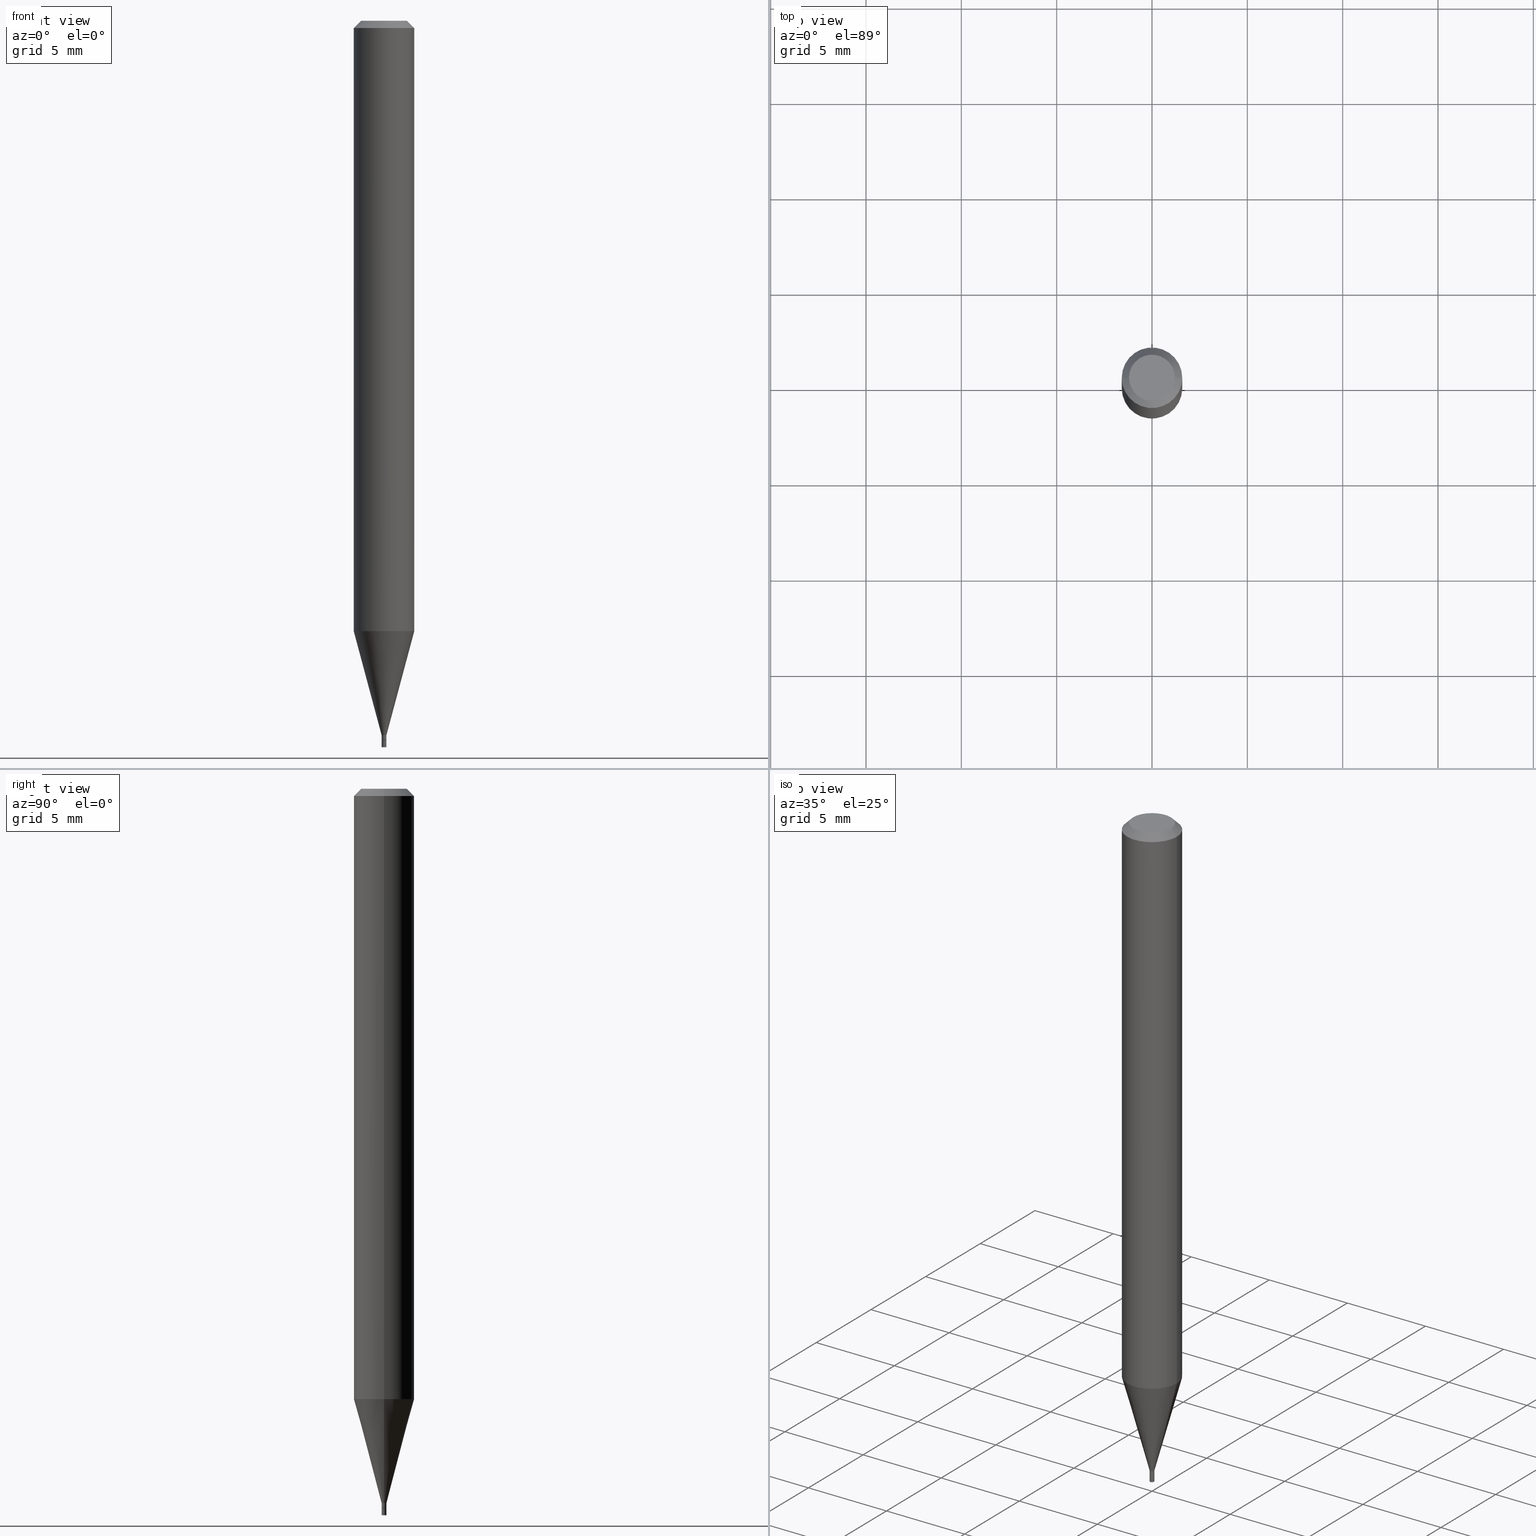
[diagram: canonical four-view strip — front | top / right | iso, engineering-drawing reading convention]
A machine part, canonical four-view strip (front | top / right | iso — engineering-drawing reading convention). The complete STEP part file that produces these views, byte-faithful:
ISO-10303-21;
HEADER;
FILE_DESCRIPTION (( 'STEP AP203' ),
    '1' );
FILE_NAME ('01090.STEP',
    '2024-03-19T22:48:56',
    ( '' ),
    ( '' ),
    'SwSTEP 2.0',
    'SolidWorks 2023',
    '' );
FILE_SCHEMA (( 'CONFIG_CONTROL_DESIGN' ));
ENDSEC;

DATA;
#1 = CIRCLE ( 'NONE', #76, 0.005000000000000000104 ) ;
#2 = AXIS2_PLACEMENT_3D ( 'NONE', #400, #393, #391 ) ;
#3 = ORIENTED_EDGE ( 'NONE', *, *, #59, .F. ) ;
#4 = ADVANCED_FACE ( 'NONE', ( #344 ), #79, .T. ) ;
#5 = DIRECTION ( 'NONE',  ( -2.445468806185136877E-29, 3.491481338843145188E-15, 1.000000000000000000 ) ) ;
#6 = PERSON_AND_ORGANIZATION_ROLE ( 'design_supplier' ) ;
#7 = CARTESIAN_POINT ( 'NONE',  ( 3.668203209277705088E-31, -5.237222008264718399E-17, -0.01499999999999999944 ) ) ;
#8 = CC_DESIGN_PERSON_AND_ORGANIZATION_ASSIGNMENT ( #105, #155, ( #71 ) ) ;
#9 = CARTESIAN_POINT ( 'NONE',  ( -0.005000000000000000104, -5.175508761435389793E-15, -1.500000000000000222 ) ) ;
#10 = ADVANCED_FACE ( 'NONE', ( #370 ), #89, .F. ) ;
#11 = ORIENTED_EDGE ( 'NONE', *, *, #243, .T. ) ;
#12 = AXIS2_PLACEMENT_3D ( 'NONE', #350, #256, #387 ) ;
#13 = FACE_OUTER_BOUND ( 'NONE', #101, .T. ) ;
#14 = AXIS2_PLACEMENT_3D ( 'NONE', #371, #39, #343 ) ;
#15 = CARTESIAN_POINT ( 'NONE',  ( 3.082286193725132894E-29, -4.400687794154770769E-15, -1.260407078564790062 ) ) ;
#16 = CARTESIAN_POINT ( 'NONE',  ( 0.06250000000000000000, -4.888073874380388472E-16, -0.01499999999999999944 ) ) ;
#17 = VERTEX_POINT ( 'NONE', #193 ) ;
#18 = DIRECTION ( 'NONE',  ( 0.000000000000000000, 0.000000000000000000, 1.000000000000000000 ) ) ;
#19 = VERTEX_POINT ( 'NONE', #9 ) ;
#20 = CARTESIAN_POINT ( 'NONE',  ( 0.005000000000000000104, -3.491481338843132862E-17, 2.438088387897967984E-31 ) ) ;
#21 = VERTEX_POINT ( 'NONE', #191 ) ;
#22 = DIRECTION ( 'NONE',  ( -2.445468806185136597E-29, 3.491481338843145583E-15, 1.000000000000000000 ) ) ;
#23 = APPROVAL_STATUS ( 'not_yet_approved' ) ;
#24 = CARTESIAN_POINT ( 'NONE',  ( 3.631521177184928138E-29, -5.184849788182071492E-15, -1.485000000000000098 ) ) ;
#25 = EDGE_LOOP ( 'NONE', ( #406, #287 ) ) ;
#26 = CARTESIAN_POINT ( 'NONE',  ( 3.082286193725132894E-29, -4.400687794154770769E-15, -1.260407078564790062 ) ) ;
#27 = AXIS2_PLACEMENT_3D ( 'NONE', #199, #18, #121 ) ;
#28 = ORIENTED_EDGE ( 'NONE', *, *, #347, .F. ) ;
#29 = EDGE_CURVE ( 'NONE', #293, #283, #48, .T. ) ;
#30 = CARTESIAN_POINT ( 'NONE',  ( -8.051188380117617343E-45, 1.149496322079166104E-30, 3.292288316969884985E-16 ) ) ;
#31 = PERSON_AND_ORGANIZATION ( #181, #291 ) ;
#32 = VERTEX_POINT ( 'NONE', #337 ) ;
#33 = DIRECTION ( 'NONE',  ( 2.445468806185136597E-29, -3.491481338843145583E-15, -1.000000000000000000 ) ) ;
#34 = ORIENTED_EDGE ( 'NONE', *, *, #300, .T. ) ;
#35 = ADVANCED_FACE ( 'NONE', ( #448 ), #122, .T. ) ;
#36 = ADVANCED_FACE ( 'NONE', ( #312 ), #399, .T. ) ;
#37 = AXIS2_PLACEMENT_3D ( 'NONE', #82, #309, #45 ) ;
#38 = APPLICATION_PROTOCOL_DEFINITION ( 'international standard', 'config_control_design', 1994, #432 ) ;
#39 = DIRECTION ( 'NONE',  ( -2.445468806185136597E-29, 3.491481338843145583E-15, 1.000000000000000000 ) ) ;
#40 = DIRECTION ( 'NONE',  ( 1.000000000000000000, -6.982962677686224112E-15, 0.000000000000000000 ) ) ;
#41 = EDGE_LOOP ( 'NONE', ( #235, #460 ) ) ;
#42 = CLOSED_SHELL ( 'NONE', ( #329, #342, #133, #146, #466, #35, #54, #253, #222, #397, #36, #56 ) ) ;
#43 = PLANE ( 'NONE',  #322 ) ;
#44 = VECTOR ( 'NONE', #333, 39.37007874015748143 ) ;
#45 = DIRECTION ( 'NONE',  ( 1.000000000000000000, -6.982962677686265922E-15, 4.876176775795935793E-29 ) ) ;
#46 = ORIENTED_EDGE ( 'NONE', *, *, #144, .T. ) ;
#47 = CARTESIAN_POINT ( 'NONE',  ( 3.631521177184928138E-29, -5.184849788182071492E-15, -1.485000000000000098 ) ) ;
#48 = LINE ( 'NONE', #125, #360 ) ;
#49 = LENGTH_MEASURE_WITH_UNIT ( LENGTH_MEASURE( 0.02539999999999999897 ), #123 );
#50 = LINE ( 'NONE', #441, #410 ) ;
#51 = AXIS2_PLACEMENT_3D ( 'NONE', #250, #141, #292 ) ;
#52 = AXIS2_PLACEMENT_3D ( 'NONE', #107, #396, #188 ) ;
#53 = DATE_TIME_ROLE ( 'creation_date' ) ;
#54 = ADVANCED_FACE ( 'NONE', ( #362 ), #450, .T. ) ;
#55 = DIRECTION ( 'NONE',  ( 1.000000000000000000, -6.982962677686267499E-15, 4.852736867747366768E-29 ) ) ;
#56 = ADVANCED_FACE ( 'NONE', ( #229 ), #414, .T. ) ;
#57 = EDGE_LOOP ( 'NONE', ( #299, #408, #265, #130 ) ) ;
#58 = DIRECTION ( 'NONE',  ( 1.000000000000000000, -6.982962677686266711E-15, 4.876176775795935793E-29 ) ) ;
#59 = EDGE_CURVE ( 'NONE', #19, #17, #50, .T. ) ;
#60 = ORIENTED_EDGE ( 'NONE', *, *, #114, .T. ) ;
#61 = DIMENSIONAL_EXPONENTS ( 1.000000000000000000, 0.000000000000000000, 0.000000000000000000, 0.000000000000000000, 0.000000000000000000, 0.000000000000000000, 0.000000000000000000 ) ;
#62 = DIRECTION ( 'NONE',  ( 1.000000000000000000, -6.982962677686265922E-15, 4.876176775795935793E-29 ) ) ;
#63 = AXIS2_PLACEMENT_3D ( 'NONE', #198, #22, #240 ) ;
#64 = PRODUCT_DEFINITION_FORMATION_WITH_SPECIFIED_SOURCE ( 'ANY', '', #74, .NOT_KNOWN. ) ;
#65 = VERTEX_POINT ( 'NONE', #405 ) ;
#66 = CARTESIAN_POINT ( 'NONE',  ( -0.004999999999999922909, -5.147576910724645736E-15, -1.484500000000000153 ) ) ;
#67 = ORIENTED_EDGE ( 'NONE', *, *, #334, .T. ) ;
#68 = EDGE_CURVE ( 'NONE', #251, #384, #83, .T. ) ;
#69 = CARTESIAN_POINT ( 'NONE',  ( -0.004500000000000000527, -5.150226137898756937E-15, -1.485000000000000098 ) ) ;
#70 = CARTESIAN_POINT ( 'NONE',  ( 0.005000000000000000104, -5.272136821653149826E-15, -1.500000000000000222 ) ) ;
#71 = SECURITY_CLASSIFICATION ( '', '', #434 ) ;
#72 = EDGE_CURVE ( 'NONE', #283, #446, #236, .T. ) ;
#73 = CARTESIAN_POINT ( 'NONE',  ( 0.004500000000000000527, -5.216273120231659345E-15, -1.485000000000000098 ) ) ;
#74 = PRODUCT ( '01090', '01090', '', ( #164 ) ) ;
#75 = PERSON_AND_ORGANIZATION ( #181, #291 ) ;
#76 = AXIS2_PLACEMENT_3D ( 'NONE', #24, #172, #132 ) ;
#77 = COORDINATED_UNIVERSAL_TIME_OFFSET ( 5, 0, .BEHIND. ) ;
#78 = VECTOR ( 'NONE', #5, 39.37007874015748143 ) ;
#79 = CYLINDRICAL_SURFACE ( 'NONE', #63, 0.005000000000000000104 ) ;
#80 = CARTESIAN_POINT ( 'NONE',  ( 3.631521177184928138E-29, -5.184849788182071492E-15, -1.485000000000000098 ) ) ;
#81 = ORIENTED_EDGE ( 'NONE', *, *, #411, .T. ) ;
#82 = CARTESIAN_POINT ( 'NONE',  ( 3.584916967085606921E-29, -5.356492647442320375E-15, -1.500000000000000222 ) ) ;
#83 = CIRCLE ( 'NONE', #180, 0.004500000000000000527 ) ;
#84 = DIRECTION ( 'NONE',  ( -2.438088387897960049E-29, 3.491481338843145188E-15, 1.000000000000000000 ) ) ;
#85 = AXIS2_PLACEMENT_3D ( 'NONE', #47, #151, #197 ) ;
#86 = MANIFOLD_SOLID_BREP ( 'Body-Move/Copy2[1]', #386 ) ;
#87 = CC_DESIGN_PERSON_AND_ORGANIZATION_ASSIGNMENT ( #31, #308, ( #318 ) ) ;
#88 = DIRECTION ( 'NONE',  ( -1.000000000000000000, 6.982962677686265922E-15, -4.876176775795935793E-29 ) ) ;
#89 = PLANE ( 'NONE',  #37 ) ;
#90 = CARTESIAN_POINT ( 'NONE',  ( 0.004500000000000000527, -5.216273120231659345E-15, -1.485000000000000098 ) ) ;
#91 = COORDINATED_UNIVERSAL_TIME_OFFSET ( 5, 0, .BEHIND. ) ;
#92 = DIRECTION ( 'NONE',  ( -2.445468806185136877E-29, 3.491481338843145188E-15, 1.000000000000000000 ) ) ;
#93 = LINE ( 'NONE', #102, #111 ) ;
#94 = VERTEX_POINT ( 'NONE', #127 ) ;
#95 = DIRECTION ( 'NONE',  ( 2.438088387897960049E-29, -3.491481338843145188E-15, -1.000000000000000000 ) ) ;
#96 = ORIENTED_EDGE ( 'NONE', *, *, #358, .F. ) ;
#97 = DIRECTION ( 'NONE',  ( 1.000000000000000000, -6.982962677686332186E-15, 0.000000000000000000 ) ) ;
#98 = EDGE_LOOP ( 'NONE', ( #11, #425, #340, #174 ) ) ;
#99 = CARTESIAN_POINT ( 'NONE',  ( 3.316907271900976096E-16, 0.04749999999999999362, -1.230947746555162994E-18 ) ) ;
#100 = CIRCLE ( 'NONE', #455, 0.004999999999999922909 ) ;
#101 = EDGE_LOOP ( 'NONE', ( #96, #156 ) ) ;
#102 = CARTESIAN_POINT ( 'NONE',  ( -0.06250000000000000000, 3.840629472727444916E-16, -0.01499999999999999944 ) ) ;
#103 = ORIENTED_EDGE ( 'NONE', *, *, #144, .F. ) ;
#104 = CONICAL_SURFACE ( 'NONE', #124, 0.004500000000000000527, 0.7853981633974723708 ) ;
#105 = PERSON_AND_ORGANIZATION ( #181, #291 ) ;
#106 = EDGE_LOOP ( 'NONE', ( #260, #430, #354, #215 ) ) ;
#107 = CARTESIAN_POINT ( 'NONE',  ( 3.607066489123076592E-29, -5.149934974793640632E-15, -1.475000000000000311 ) ) ;
#108 = COORDINATED_UNIVERSAL_TIME_OFFSET ( 5, 0, .BEHIND. ) ;
#109 = FACE_OUTER_BOUND ( 'NONE', #295, .T. ) ;
#110 = CC_DESIGN_PERSON_AND_ORGANIZATION_ASSIGNMENT ( #158, #6, ( #64 ) ) ;
#111 = VECTOR ( 'NONE', #258, 39.37007874015748143 ) ;
#112 = DATE_TIME_ROLE ( 'classification_date' ) ;
#113 = DIRECTION ( 'NONE',  ( 1.000000000000000000, -6.982962677686224112E-15, 0.000000000000000000 ) ) ;
#114 = EDGE_CURVE ( 'NONE', #283, #65, #374, .T. ) ;
#115 = CARTESIAN_POINT ( 'NONE',  ( 3.668203209277705088E-31, -5.237222008264718399E-17, -0.01499999999999999944 ) ) ;
#116 = DIRECTION ( 'NONE',  ( -2.445468806185136877E-29, 3.491481338843145188E-15, 1.000000000000000000 ) ) ;
#117 = CALENDAR_DATE ( 2024, 19, 3 ) ;
#118 = DIRECTION ( 'NONE',  ( -2.445468806185136597E-29, 3.491481338843145583E-15, 1.000000000000000000 ) ) ;
#119 = CARTESIAN_POINT ( 'NONE',  ( 3.631521177184928138E-29, -5.184849788182071492E-15, -1.485000000000000098 ) ) ;
#120 = DIRECTION ( 'NONE',  ( -2.445468806185136597E-29, 3.491481338843145583E-15, 1.000000000000000000 ) ) ;
#121 = DIRECTION ( 'NONE',  ( 1.000000000000000000, 0.000000000000000000, 0.000000000000000000 ) ) ;
#122 = CONICAL_SURFACE ( 'NONE', #185, 0.004999999999999921174, 0.2617993877991500740 ) ;
#123 =( LENGTH_UNIT ( ) NAMED_UNIT ( * ) SI_UNIT ( $, .METRE. ) );
#124 = AXIS2_PLACEMENT_3D ( 'NONE', #119, #163, #113 ) ;
#125 = CARTESIAN_POINT ( 'NONE',  ( -0.004999999999999921174, -5.114407838005636380E-15, -1.475000000000000311 ) ) ;
#126 =( NAMED_UNIT ( * ) SI_UNIT ( $, .STERADIAN. ) SOLID_ANGLE_UNIT ( ) );
#127 = CARTESIAN_POINT ( 'NONE',  ( -0.04749999999999999362, 3.578768372314216422E-16, 3.292288316969860333E-16 ) ) ;
#128 = CARTESIAN_POINT ( 'NONE',  ( 3.607066489123076592E-29, -5.149934974793640632E-15, -1.475000000000000311 ) ) ;
#129 = CALENDAR_DATE ( 2024, 19, 3 ) ;
#130 = ORIENTED_EDGE ( 'NONE', *, *, #331, .F. ) ;
#131 = CIRCLE ( 'NONE', #212, 0.04749999999999999362 ) ;
#132 = DIRECTION ( 'NONE',  ( 1.000000000000000000, -6.982962677686332186E-15, 0.000000000000000000 ) ) ;
#133 = ADVANCED_FACE ( 'NONE', ( #245 ), #392, .T. ) ;
#134 = EDGE_LOOP ( 'NONE', ( #388, #60, #28, #382 ) ) ;
#135 = DIRECTION ( 'NONE',  ( -2.445468806185136597E-29, 3.491481338843145583E-15, 1.000000000000000000 ) ) ;
#136 = ADVANCED_BREP_SHAPE_REPRESENTATION ( '01090', ( #86, #230, #27 ), #213 ) ;
#137 = EDGE_LOOP ( 'NONE', ( #3, #209, #217, #211 ) ) ;
#138 = DIRECTION ( 'NONE',  ( -0.7071067811865645591, 7.493145998870415691E-15, 0.7071067811865304753 ) ) ;
#139 = ORIENTED_EDGE ( 'NONE', *, *, #304, .F. ) ;
#140 = ADVANCED_FACE ( 'NONE', ( #214 ), #383, .T. ) ;
#141 = DIRECTION ( 'NONE',  ( -2.445468806185136597E-29, 3.491481338843145583E-15, 1.000000000000000000 ) ) ;
#142 = ORIENTED_EDGE ( 'NONE', *, *, #313, .T. ) ;
#143 = PRODUCT_DEFINITION_SHAPE ( 'NONE', 'NONE',  #318 ) ;
#144 = EDGE_CURVE ( 'NONE', #257, #293, #175, .T. ) ;
#145 = APPROVAL ( #413, 'UNSPECIFIED' ) ;
#146 = ADVANCED_FACE ( 'NONE', ( #286 ), #353, .T. ) ;
#147 = VECTOR ( 'NONE', #454, 39.37007874015748143 ) ;
#148 = CIRCLE ( 'NONE', #332, 0.06250000000000000000 ) ;
#149 = CALENDAR_DATE ( 2024, 19, 3 ) ;
#150 = ORIENTED_EDGE ( 'NONE', *, *, #182, .T. ) ;
#151 = DIRECTION ( 'NONE',  ( -2.445468806185136597E-29, 3.491481338843145583E-15, 1.000000000000000000 ) ) ;
#152 = DIRECTION ( 'NONE',  ( -2.445468806185136597E-29, 3.491481338843145583E-15, 1.000000000000000000 ) ) ;
#153 = AXIS2_PLACEMENT_3D ( 'NONE', #328, #284, #58 ) ;
#154 = LOCAL_TIME ( 18, 48, 56.00000000000000000, #315 ) ;
#155 = PERSON_AND_ORGANIZATION_ROLE ( 'classification_officer' ) ;
#156 = ORIENTED_EDGE ( 'NONE', *, *, #68, .F. ) ;
#157 = DIRECTION ( 'NONE',  ( -2.445468806185136597E-29, 3.491481338843145583E-15, 1.000000000000000000 ) ) ;
#158 = PERSON_AND_ORGANIZATION ( #181, #291 ) ;
#159 = CARTESIAN_POINT ( 'NONE',  ( 0.06249999999999999306, -4.837122961510163228E-15, -1.260407078564790062 ) ) ;
#160 = DIRECTION ( 'NONE',  ( 1.000000000000000000, -6.982962677686248567E-15, 0.000000000000000000 ) ) ;
#161 = EDGE_LOOP ( 'NONE', ( #81, #150 ) ) ;
#162 = EDGE_CURVE ( 'NONE', #21, #94, #131, .T. ) ;
#163 = DIRECTION ( 'NONE',  ( -2.445468806185136597E-29, 3.491481338843145583E-15, 1.000000000000000000 ) ) ;
#164 = MECHANICAL_CONTEXT ( 'NONE', #432, 'mechanical' ) ;
#165 = DIRECTION ( 'NONE',  ( -2.445468806185136597E-29, 3.491481338843145583E-15, 1.000000000000000000 ) ) ;
#166 = CIRCLE ( 'NONE', #412, 0.005000000000000000104 ) ;
#167 = DIRECTION ( 'NONE',  ( -2.445468806185136597E-29, 3.491481338843145583E-15, 1.000000000000000000 ) ) ;
#168 = CARTESIAN_POINT ( 'NONE',  ( 0.000000000000000000, 0.000000000000000000, 0.000000000000000000 ) ) ;
#169 = ORIENTED_EDGE ( 'NONE', *, *, #114, .F. ) ;
#170 = EDGE_CURVE ( 'NONE', #251, #257, #326, .T. ) ;
#171 = AXIS2_PLACEMENT_3D ( 'NONE', #128, #282, #417 ) ;
#172 = DIRECTION ( 'NONE',  ( -2.445468806185136597E-29, 3.491481338843145583E-15, 1.000000000000000000 ) ) ;
#173 = DESIGN_CONTEXT ( 'detailed design', #465, 'design' ) ;
#174 = ORIENTED_EDGE ( 'NONE', *, *, #378, .F. ) ;
#175 = LINE ( 'NONE', #319, #310 ) ;
#176 = ORIENTED_EDGE ( 'NONE', *, *, #29, .F. ) ;
#177 = PLANE ( 'NONE',  #267 ) ;
#178 = ORIENTED_EDGE ( 'NONE', *, *, #72, .T. ) ;
#179 = EDGE_CURVE ( 'NONE', #21, #421, #252, .T. ) ;
#180 = AXIS2_PLACEMENT_3D ( 'NONE', #80, #365, #40 ) ;
#181 = PERSON ( 'UNSPECIFIED', 'UNSPECIFIED', 'UNSPECIFIED', ('UNSPECIFIED'), ('UNSPECIFIED'), ('UNSPECIFIED') ) ;
#182 = EDGE_CURVE ( 'NONE', #17, #254, #1, .T. ) ;
#183 = LINE ( 'NONE', #73, #44 ) ;
#184 = APPROVAL ( #269, 'UNSPECIFIED' ) ;
#185 = AXIS2_PLACEMENT_3D ( 'NONE', #403, #118, #160 ) ;
#186 = CC_DESIGN_APPROVAL ( #184, ( #71 ) ) ;
#187 = APPROVAL_ROLE ( '' ) ;
#188 = DIRECTION ( 'NONE',  ( 1.000000000000000000, -6.982962677686248567E-15, 0.000000000000000000 ) ) ;
#189 = APPROVAL_DATE_TIME ( #394, #325 ) ;
#190 = DIRECTION ( 'NONE',  ( 1.000000000000000000, -6.982962677686246200E-15, 0.000000000000000000 ) ) ;
#191 = CARTESIAN_POINT ( 'NONE',  ( 0.04749999999999999362, -4.035134999187572707E-16, 3.292288316969910130E-16 ) ) ;
#192 = DIRECTION ( 'NONE',  ( 1.000000000000000000, -6.982962677686265922E-15, 4.876176775795935793E-29 ) ) ;
#193 = CARTESIAN_POINT ( 'NONE',  ( -0.005000000000000000104, -5.175508761435389793E-15, -1.485000000000000098 ) ) ;
#194 = EDGE_CURVE ( 'NONE', #94, #21, #204, .T. ) ;
#195 = AXIS2_PLACEMENT_3D ( 'NONE', #302, #280, #226 ) ;
#196 = ORIENTED_EDGE ( 'NONE', *, *, #72, .F. ) ;
#197 = DIRECTION ( 'NONE',  ( 1.000000000000000000, -6.982962677686332186E-15, 0.000000000000000000 ) ) ;
#198 = CARTESIAN_POINT ( 'NONE',  ( 0.000000000000000000, 0.000000000000000000, 0.000000000000000000 ) ) ;
#199 = CARTESIAN_POINT ( 'NONE',  ( 0.000000000000000000, 0.000000000000000000, 0.000000000000000000 ) ) ;
#200 = ORIENTED_EDGE ( 'NONE', *, *, #228, .F. ) ;
#201 = CARTESIAN_POINT ( 'NONE',  ( 3.668203209277704895E-29, -5.237222008264718177E-15, -1.500000000000000222 ) ) ;
#202 = CARTESIAN_POINT ( 'NONE',  ( 0.000000000000000000, 0.000000000000000000, 0.000000000000000000 ) ) ;
#203 = CARTESIAN_POINT ( 'NONE',  ( 3.630298442781835897E-29, -5.183104047512649988E-15, -1.484500000000000153 ) ) ;
#204 = CIRCLE ( 'NONE', #462, 0.04749999999999999362 ) ;
#205 = CIRCLE ( 'NONE', #255, 0.004500000000000000527 ) ;
#206 = CIRCLE ( 'NONE', #52, 0.004999999999999921174 ) ;
#207 = PERSON_AND_ORGANIZATION ( #181, #291 ) ;
#208 = CARTESIAN_POINT ( 'NONE',  ( -0.004500000000000000527, -5.152875365072866561E-15, -1.485000000000000098 ) ) ;
#209 = ORIENTED_EDGE ( 'NONE', *, *, #431, .T. ) ;
#210 = DIRECTION ( 'NONE',  ( -1.000000000000000000, 6.982962677686265922E-15, -4.876176775795935793E-29 ) ) ;
#211 = ORIENTED_EDGE ( 'NONE', *, *, #182, .F. ) ;
#212 = AXIS2_PLACEMENT_3D ( 'NONE', #348, #167, #55 ) ;
#213 =( GEOMETRIC_REPRESENTATION_CONTEXT ( 3 ) GLOBAL_UNCERTAINTY_ASSIGNED_CONTEXT ( ( #305 ) ) GLOBAL_UNIT_ASSIGNED_CONTEXT ( ( #404, #301, #126 ) ) REPRESENTATION_CONTEXT ( 'NONE', 'WORKASPACE' ) );
#214 = FACE_OUTER_BOUND ( 'NONE', #98, .T. ) ;
#215 = ORIENTED_EDGE ( 'NONE', *, *, #317, .T. ) ;
#216 = DIRECTION ( 'NONE',  ( -1.000000000000000000, 6.982962677686266711E-15, 0.000000000000000000 ) ) ;
#217 = ORIENTED_EDGE ( 'NONE', *, *, #378, .T. ) ;
#218 = CARTESIAN_POINT ( 'NONE',  ( -0.06249999999999999306, -3.956598584304708153E-15, -1.260407078564790062 ) ) ;
#219 = EDGE_CURVE ( 'NONE', #32, #446, #355, .T. ) ;
#220 = CONICAL_SURFACE ( 'NONE', #12, 0.06250000000000000000, 0.7853981633974373988 ) ;
#221 = CONICAL_SURFACE ( 'NONE', #14, 0.004999999999999921174, 0.2617993877991500740 ) ;
#222 = ADVANCED_FACE ( 'NONE', ( #429 ), #177, .F. ) ;
#223 = AXIS2_PLACEMENT_3D ( 'NONE', #115, #33, #216 ) ;
#224 = AXIS2_PLACEMENT_3D ( 'NONE', #26, #135, #424 ) ;
#225 = APPROVAL_DATE_TIME ( #395, #184 ) ;
#226 = DIRECTION ( 'NONE',  ( 1.000000000000000000, -6.982962677686224112E-15, 0.000000000000000000 ) ) ;
#227 = PLANE ( 'NONE',  #464 ) ;
#228 = EDGE_CURVE ( 'NONE', #257, #356, #345, .T. ) ;
#229 = FACE_OUTER_BOUND ( 'NONE', #427, .T. ) ;
#230 = MANIFOLD_SOLID_BREP ( 'Body-Move/Copy2[2]', #42 ) ;
#231 = DATE_AND_TIME ( #398, #428 ) ;
#232 = ORIENTED_EDGE ( 'NONE', *, *, #390, .T. ) ;
#233 = LINE ( 'NONE', #274, #420 ) ;
#234 = EDGE_CURVE ( 'NONE', #94, #65, #93, .T. ) ;
#235 = ORIENTED_EDGE ( 'NONE', *, *, #194, .T. ) ;
#236 = CIRCLE ( 'NONE', #438, 0.06250000000000000000 ) ;
#237 = LOCAL_TIME ( 18, 48, 56.00000000000000000, #108 ) ;
#238 = DIRECTION ( 'NONE',  ( -2.445468806185136597E-29, 3.491481338843145583E-15, 1.000000000000000000 ) ) ;
#239 = CC_DESIGN_PERSON_AND_ORGANIZATION_ASSIGNMENT ( #75, #338, ( #64 ) ) ;
#240 = DIRECTION ( 'NONE',  ( 1.000000000000000000, -6.982962677686265922E-15, 4.876176775795935793E-29 ) ) ;
#241 = CARTESIAN_POINT ( 'NONE',  ( 0.004999999999999922909, -5.218018860901080849E-15, -1.484500000000000153 ) ) ;
#242 = CARTESIAN_POINT ( 'NONE',  ( 0.000000000000000000, 0.000000000000000000, 0.000000000000000000 ) ) ;
#243 = EDGE_CURVE ( 'NONE', #330, #19, #297, .T. ) ;
#244 = CALENDAR_DATE ( 2024, 19, 3 ) ;
#245 = FACE_OUTER_BOUND ( 'NONE', #289, .T. ) ;
#246 = PERSON_AND_ORGANIZATION ( #181, #291 ) ;
#247 = CC_DESIGN_APPROVAL ( #325, ( #64 ) ) ;
#248 = LINE ( 'NONE', #379, #78 ) ;
#249 = ORIENTED_EDGE ( 'NONE', *, *, #304, .T. ) ;
#250 = CARTESIAN_POINT ( 'NONE',  ( 3.630298442781835897E-29, -5.183104047512649988E-15, -1.484500000000000153 ) ) ;
#251 = VERTEX_POINT ( 'NONE', #69 ) ;
#252 = LINE ( 'NONE', #357, #147 ) ;
#253 = ADVANCED_FACE ( 'NONE', ( #288 ), #220, .T. ) ;
#254 = VERTEX_POINT ( 'NONE', #381 ) ;
#255 = AXIS2_PLACEMENT_3D ( 'NONE', #439, #238, #369 ) ;
#256 = DIRECTION ( 'NONE',  ( 2.445468806185136597E-29, -3.491481338843145583E-15, -1.000000000000000000 ) ) ;
#257 = VERTEX_POINT ( 'NONE', #66 ) ;
#258 = DIRECTION ( 'NONE',  ( -0.7071067811865398012, 2.468850131082175808E-15, -0.7071067811865552333 ) ) ;
#259 = CC_DESIGN_PERSON_AND_ORGANIZATION_ASSIGNMENT ( #277, #416, ( #74 ) ) ;
#260 = ORIENTED_EDGE ( 'NONE', *, *, #179, .F. ) ;
#261 = DIRECTION ( 'NONE',  ( 1.000000000000000000, -6.982962677686266711E-15, 0.000000000000000000 ) ) ;
#262 = AXIS2_PLACEMENT_3D ( 'NONE', #168, #426, #62 ) ;
#263 = VECTOR ( 'NONE', #407, 39.37007874015748143 ) ;
#264 = PERSON_AND_ORGANIZATION ( #181, #291 ) ;
#265 = ORIENTED_EDGE ( 'NONE', *, *, #334, .F. ) ;
#266 = CYLINDRICAL_SURFACE ( 'NONE', #2, 0.004999999999999922042 ) ;
#267 = AXIS2_PLACEMENT_3D ( 'NONE', #99, #95, #210 ) ;
#268 = CC_DESIGN_APPROVAL ( #145, ( #318 ) ) ;
#269 = APPROVAL_STATUS ( 'not_yet_approved' ) ;
#270 = DIRECTION ( 'NONE',  ( 1.000000000000000000, -6.982962677686266711E-15, 0.000000000000000000 ) ) ;
#271 = DIRECTION ( 'NONE',  ( 1.000000000000000000, -6.982962677686266711E-15, 4.876176775795935793E-29 ) ) ;
#272 = EDGE_CURVE ( 'NONE', #446, #283, #418, .T. ) ;
#273 = EDGE_LOOP ( 'NONE', ( #453, #327, #463, #200 ) ) ;
#274 = CARTESIAN_POINT ( 'NONE',  ( 0.06250000000000000000, -4.364351673553916694E-16, 3.047610484872459871E-30 ) ) ;
#275 = PRODUCT_RELATED_PRODUCT_CATEGORY ( 'detail', '', ( #74 ) ) ;
#276 = DIRECTION ( 'NONE',  ( -0.2588190451025213501, 5.211531920934551042E-15, 0.9659258262890682012 ) ) ;
#277 = PERSON_AND_ORGANIZATION ( #181, #291 ) ;
#278 = VECTOR ( 'NONE', #422, 39.37007874015747433 ) ;
#279 = CIRCLE ( 'NONE', #85, 0.005000000000000000104 ) ;
#280 = DIRECTION ( 'NONE',  ( -2.445468806185136597E-29, 3.491481338843145583E-15, 1.000000000000000000 ) ) ;
#281 = DIRECTION ( 'NONE',  ( 1.000000000000000000, -6.982962677686262766E-15, 0.000000000000000000 ) ) ;
#282 = DIRECTION ( 'NONE',  ( -2.445468806185136597E-29, 3.491481338843145583E-15, 1.000000000000000000 ) ) ;
#283 = VERTEX_POINT ( 'NONE', #218 ) ;
#284 = DIRECTION ( 'NONE',  ( -2.445468806185136597E-29, 3.491481338843145583E-15, 1.000000000000000000 ) ) ;
#285 = EDGE_LOOP ( 'NONE', ( #176, #34, #436, #196 ) ) ;
#286 = FACE_OUTER_BOUND ( 'NONE', #134, .T. ) ;
#287 = ORIENTED_EDGE ( 'NONE', *, *, #431, .F. ) ;
#288 = FACE_OUTER_BOUND ( 'NONE', #106, .T. ) ;
#289 = EDGE_LOOP ( 'NONE', ( #456, #380, #423, #351 ) ) ;
#290 = VECTOR ( 'NONE', #92, 39.37007874015748143 ) ;
#291 = ORGANIZATION ( 'UNSPECIFIED', 'UNSPECIFIED', '' ) ;
#292 = DIRECTION ( 'NONE',  ( 1.000000000000000000, -6.982962677686246200E-15, 0.000000000000000000 ) ) ;
#293 = VERTEX_POINT ( 'NONE', #314 ) ;
#294 = CARTESIAN_POINT ( 'NONE',  ( 3.668203209277705088E-31, -5.237222008264718399E-17, -0.01499999999999999944 ) ) ;
#295 = EDGE_LOOP ( 'NONE', ( #67, #46, #324, #139 ) ) ;
#296 = FACE_OUTER_BOUND ( 'NONE', #368, .T. ) ;
#297 = CIRCLE ( 'NONE', #375, 0.005000000000000000104 ) ;
#298 = APPROVAL_PERSON_ORGANIZATION ( #207, #325, #187 ) ;
#299 = ORIENTED_EDGE ( 'NONE', *, *, #358, .T. ) ;
#300 = EDGE_CURVE ( 'NONE', #293, #32, #401, .T. ) ;
#301 =( NAMED_UNIT ( * ) PLANE_ANGLE_UNIT ( ) SI_UNIT ( $, .RADIAN. ) );
#302 = CARTESIAN_POINT ( 'NONE',  ( 3.631521177184928138E-29, -5.184849788182071492E-15, -1.485000000000000098 ) ) ;
#303 = FACE_OUTER_BOUND ( 'NONE', #57, .T. ) ;
#304 = EDGE_CURVE ( 'NONE', #356, #32, #248, .T. ) ;
#305 = UNCERTAINTY_MEASURE_WITH_UNIT (LENGTH_MEASURE( 1.000000000000000082E-05 ), #404, 'distance_accuracy_value', 'NONE');
#306 = ORIENTED_EDGE ( 'NONE', *, *, #29, .T. ) ;
#307 = DIRECTION ( 'NONE',  ( 1.000000000000000000, -6.982962677686332186E-15, 0.000000000000000000 ) ) ;
#308 = PERSON_AND_ORGANIZATION_ROLE ( 'creator' ) ;
#309 = DIRECTION ( 'NONE',  ( -2.438088387897960049E-29, 3.491481338843145188E-15, 1.000000000000000000 ) ) ;
#310 = VECTOR ( 'NONE', #323, 39.37007874015748143 ) ;
#311 = CC_DESIGN_DATE_AND_TIME_ASSIGNMENT ( #373, #53, ( #318 ) ) ;
#312 = FACE_OUTER_BOUND ( 'NONE', #273, .T. ) ;
#313 = EDGE_CURVE ( 'NONE', #32, #293, #206, .T. ) ;
#314 = CARTESIAN_POINT ( 'NONE',  ( -0.004999999999999921174, -4.535503211155172266E-15, -1.475000000000000311 ) ) ;
#315 = COORDINATED_UNIVERSAL_TIME_OFFSET ( 5, 0, .BEHIND. ) ;
#316 = CC_DESIGN_DATE_AND_TIME_ASSIGNMENT ( #231, #112, ( #71 ) ) ;
#317 = EDGE_CURVE ( 'NONE', #65, #421, #148, .T. ) ;
#318 = PRODUCT_DEFINITION ( 'UNKNOWN', '', #64, #173 ) ;
#319 = CARTESIAN_POINT ( 'NONE',  ( -0.004999999999999922042, 3.552713678800445537E-17, -2.459467545127414163E-31 ) ) ;
#320 = EDGE_LOOP ( 'NONE', ( #169, #178, #232, #349 ) ) ;
#321 = AXIS2_PLACEMENT_3D ( 'NONE', #242, #152, #372 ) ;
#322 = AXIS2_PLACEMENT_3D ( 'NONE', #409, #84, #192 ) ;
#323 = DIRECTION ( 'NONE',  ( -2.445468806185136877E-29, 3.491481338843145188E-15, 1.000000000000000000 ) ) ;
#324 = ORIENTED_EDGE ( 'NONE', *, *, #313, .F. ) ;
#325 = APPROVAL ( #23, 'UNSPECIFIED' ) ;
#326 = LINE ( 'NONE', #208, #352 ) ;
#327 = ORIENTED_EDGE ( 'NONE', *, *, #68, .T. ) ;
#328 = CARTESIAN_POINT ( 'NONE',  ( 0.000000000000000000, 0.000000000000000000, 0.000000000000000000 ) ) ;
#329 = ADVANCED_FACE ( 'NONE', ( #109 ), #266, .T. ) ;
#330 = VERTEX_POINT ( 'NONE', #70 ) ;
#331 = EDGE_CURVE ( 'NONE', #384, #356, #183, .T. ) ;
#332 = AXIS2_PLACEMENT_3D ( 'NONE', #294, #437, #261 ) ;
#333 = DIRECTION ( 'NONE',  ( 0.7071067811865645591, -2.468850131082435343E-15, 0.7071067811865304753 ) ) ;
#334 = EDGE_CURVE ( 'NONE', #356, #257, #100, .T. ) ;
#335 = DIRECTION ( 'NONE',  ( -2.445468806185136877E-29, 3.491481338843145188E-15, 1.000000000000000000 ) ) ;
#336 = AXIS2_PLACEMENT_3D ( 'NONE', #202, #120, #271 ) ;
#337 = CARTESIAN_POINT ( 'NONE',  ( 0.004999999999999921174, -5.184849788182071492E-15, -1.475000000000000311 ) ) ;
#338 = PERSON_AND_ORGANIZATION_ROLE ( 'creator' ) ;
#339 = DIRECTION ( 'NONE',  ( -2.445468806185136597E-29, 3.491481338843145583E-15, 1.000000000000000000 ) ) ;
#340 = ORIENTED_EDGE ( 'NONE', *, *, #411, .F. ) ;
#341 = DIRECTION ( 'NONE',  ( -2.445468806185136597E-29, 3.491481338843145583E-15, 1.000000000000000000 ) ) ;
#342 = ADVANCED_FACE ( 'NONE', ( #303 ), #104, .T. ) ;
#343 = DIRECTION ( 'NONE',  ( 1.000000000000000000, -6.982962677686248567E-15, 0.000000000000000000 ) ) ;
#344 = FACE_OUTER_BOUND ( 'NONE', #137, .T. ) ;
#345 = CIRCLE ( 'NONE', #51, 0.004999999999999922909 ) ;
#346 = APPROVAL_PERSON_ORGANIZATION ( #264, #184, #366 ) ;
#347 = EDGE_CURVE ( 'NONE', #421, #65, #447, .T. ) ;
#348 = CARTESIAN_POINT ( 'NONE',  ( -8.051188380117617343E-45, 1.149496322079166104E-30, 3.292288316969884985E-16 ) ) ;
#349 = ORIENTED_EDGE ( 'NONE', *, *, #317, .F. ) ;
#350 = CARTESIAN_POINT ( 'NONE',  ( 3.668203209277705088E-31, -5.237222008264718399E-17, -0.01499999999999999944 ) ) ;
#351 = ORIENTED_EDGE ( 'NONE', *, *, #234, .F. ) ;
#352 = VECTOR ( 'NONE', #138, 39.37007874015748143 ) ;
#353 = CYLINDRICAL_SURFACE ( 'NONE', #153, 0.06250000000000000000 ) ;
#354 = ORIENTED_EDGE ( 'NONE', *, *, #234, .T. ) ;
#355 = LINE ( 'NONE', #452, #278 ) ;
#356 = VERTEX_POINT ( 'NONE', #241 ) ;
#357 = CARTESIAN_POINT ( 'NONE',  ( 0.06250000000000000000, -4.811533449433679005E-16, -0.01499999999999999944 ) ) ;
#358 = EDGE_CURVE ( 'NONE', #384, #251, #205, .T. ) ;
#359 = COORDINATED_UNIVERSAL_TIME_OFFSET ( 5, 0, .BEHIND. ) ;
#360 = VECTOR ( 'NONE', #276, 39.37007874015747433 ) ;
#361 = AXIS2_PLACEMENT_3D ( 'NONE', #7, #339, #270 ) ;
#362 = FACE_OUTER_BOUND ( 'NONE', #320, .T. ) ;
#363 = SHAPE_DEFINITION_REPRESENTATION ( #143, #136 ) ;
#364 = DIRECTION ( 'NONE',  ( 2.438088387897960049E-29, -3.491481338843145188E-15, -1.000000000000000000 ) ) ;
#365 = DIRECTION ( 'NONE',  ( -2.445468806185136597E-29, 3.491481338843145583E-15, 1.000000000000000000 ) ) ;
#366 = APPROVAL_ROLE ( '' ) ;
#367 = CARTESIAN_POINT ( 'NONE',  ( 3.491481338846764088E-17, 0.004999999999994815016, -1.485000000000000098 ) ) ;
#368 = EDGE_LOOP ( 'NONE', ( #142, #306, #435, #458 ) ) ;
#369 = DIRECTION ( 'NONE',  ( 1.000000000000000000, -6.982962677686224112E-15, 0.000000000000000000 ) ) ;
#370 = FACE_OUTER_BOUND ( 'NONE', #25, .T. ) ;
#371 = CARTESIAN_POINT ( 'NONE',  ( 3.607066489123076592E-29, -5.149934974793640632E-15, -1.475000000000000311 ) ) ;
#372 = DIRECTION ( 'NONE',  ( 1.000000000000000000, -6.982962677686267499E-15, 4.876176775795935793E-29 ) ) ;
#373 = DATE_AND_TIME ( #244, #440 ) ;
#374 = LINE ( 'NONE', #415, #290 ) ;
#375 = AXIS2_PLACEMENT_3D ( 'NONE', #457, #389, #97 ) ;
#376 = APPROVAL_ROLE ( '' ) ;
#377 = LOCAL_TIME ( 18, 48, 56.00000000000000000, #77 ) ;
#378 = EDGE_CURVE ( 'NONE', #330, #254, #445, .T. ) ;
#379 = CARTESIAN_POINT ( 'NONE',  ( 0.004999999999999922042, -3.491481338843079244E-17, 2.438088387897929886E-31 ) ) ;
#380 = ORIENTED_EDGE ( 'NONE', *, *, #179, .T. ) ;
#381 = CARTESIAN_POINT ( 'NONE',  ( 0.005000000000000000104, -5.219764601570503141E-15, -1.485000000000000098 ) ) ;
#382 = ORIENTED_EDGE ( 'NONE', *, *, #390, .F. ) ;
#383 = CYLINDRICAL_SURFACE ( 'NONE', #262, 0.005000000000000000104 ) ;
#384 = VERTEX_POINT ( 'NONE', #90 ) ;
#385 = ADVANCED_FACE ( 'NONE', ( #449 ), #227, .F. ) ;
#386 = CLOSED_SHELL ( 'NONE', ( #140, #10, #4, #385 ) ) ;
#387 = DIRECTION ( 'NONE',  ( -1.000000000000000000, 6.982962677686266711E-15, 0.000000000000000000 ) ) ;
#388 = ORIENTED_EDGE ( 'NONE', *, *, #272, .T. ) ;
#389 = DIRECTION ( 'NONE',  ( -2.445468806185136597E-29, 3.491481338843145583E-15, 1.000000000000000000 ) ) ;
#390 = EDGE_CURVE ( 'NONE', #446, #421, #233, .T. ) ;
#391 = DIRECTION ( 'NONE',  ( 1.000000000000000000, -6.982962677686267499E-15, 4.876176775795935793E-29 ) ) ;
#392 = CONICAL_SURFACE ( 'NONE', #223, 0.06250000000000000000, 0.7853981633974373988 ) ;
#393 = DIRECTION ( 'NONE',  ( -2.445468806185136597E-29, 3.491481338843145583E-15, 1.000000000000000000 ) ) ;
#394 = DATE_AND_TIME ( #149, #237 ) ;
#395 = DATE_AND_TIME ( #117, #377 ) ;
#396 = DIRECTION ( 'NONE',  ( -2.445468806185136597E-29, 3.491481338843145583E-15, 1.000000000000000000 ) ) ;
#397 = ADVANCED_FACE ( 'NONE', ( #13 ), #43, .F. ) ;
#398 = CALENDAR_DATE ( 2024, 19, 3 ) ;
#399 = CONICAL_SURFACE ( 'NONE', #195, 0.004500000000000000527, 0.7853981633974723708 ) ;
#400 = CARTESIAN_POINT ( 'NONE',  ( 0.000000000000000000, 0.000000000000000000, 0.000000000000000000 ) ) ;
#401 = CIRCLE ( 'NONE', #171, 0.004999999999999921174 ) ;
#402 = CC_DESIGN_SECURITY_CLASSIFICATION ( #71, ( #64 ) ) ;
#403 = CARTESIAN_POINT ( 'NONE',  ( 3.607066489123076592E-29, -5.149934974793640632E-15, -1.475000000000000311 ) ) ;
#404 =( CONVERSION_BASED_UNIT ( 'INCH', #49 ) LENGTH_UNIT ( ) NAMED_UNIT ( #61 ) );
#405 = CARTESIAN_POINT ( 'NONE',  ( -0.06250000000000000000, -1.782440797268646111E-15, -0.01499999999999999944 ) ) ;
#406 = ORIENTED_EDGE ( 'NONE', *, *, #243, .F. ) ;
#407 = DIRECTION ( 'NONE',  ( -2.445468806185136877E-29, 3.491481338843145188E-15, 1.000000000000000000 ) ) ;
#408 = ORIENTED_EDGE ( 'NONE', *, *, #170, .T. ) ;
#409 = CARTESIAN_POINT ( 'NONE',  ( 3.631521177184928138E-29, -5.184849788182071492E-15, -1.485000000000000098 ) ) ;
#410 = VECTOR ( 'NONE', #116, 39.37007874015748143 ) ;
#411 = EDGE_CURVE ( 'NONE', #254, #17, #279, .T. ) ;
#412 = AXIS2_PLACEMENT_3D ( 'NONE', #201, #341, #307 ) ;
#413 = APPROVAL_STATUS ( 'not_yet_approved' ) ;
#414 = CYLINDRICAL_SURFACE ( 'NONE', #321, 0.004999999999999922042 ) ;
#415 = CARTESIAN_POINT ( 'NONE',  ( -0.06250000000000000000, 4.440892098500626162E-16, -3.074334431409316114E-30 ) ) ;
#416 = PERSON_AND_ORGANIZATION_ROLE ( 'design_owner' ) ;
#417 = DIRECTION ( 'NONE',  ( 1.000000000000000000, -6.982962677686248567E-15, 0.000000000000000000 ) ) ;
#418 = CIRCLE ( 'NONE', #224, 0.06250000000000000000 ) ;
#419 = DATE_AND_TIME ( #129, #154 ) ;
#420 = VECTOR ( 'NONE', #335, 39.37007874015748143 ) ;
#421 = VERTEX_POINT ( 'NONE', #16 ) ;
#422 = DIRECTION ( 'NONE',  ( 0.2588190451025213501, 1.565188264969621968E-15, 0.9659258262890682012 ) ) ;
#423 = ORIENTED_EDGE ( 'NONE', *, *, #347, .T. ) ;
#424 = DIRECTION ( 'NONE',  ( 1.000000000000000000, -6.982962677686262766E-15, 0.000000000000000000 ) ) ;
#425 = ORIENTED_EDGE ( 'NONE', *, *, #59, .T. ) ;
#426 = DIRECTION ( 'NONE',  ( -2.445468806185136597E-29, 3.491481338843145583E-15, 1.000000000000000000 ) ) ;
#427 = EDGE_LOOP ( 'NONE', ( #103, #443, #249, #442 ) ) ;
#428 = LOCAL_TIME ( 18, 48, 56.00000000000000000, #359 ) ;
#429 = FACE_OUTER_BOUND ( 'NONE', #41, .T. ) ;
#430 = ORIENTED_EDGE ( 'NONE', *, *, #194, .F. ) ;
#431 = EDGE_CURVE ( 'NONE', #19, #330, #166, .T. ) ;
#432 = APPLICATION_CONTEXT ( 'configuration controlled 3d designs of mechanical parts and assemblies' ) ;
#433 = APPROVAL_PERSON_ORGANIZATION ( #246, #145, #376 ) ;
#434 = SECURITY_CLASSIFICATION_LEVEL ( 'unclassified' ) ;
#435 = ORIENTED_EDGE ( 'NONE', *, *, #272, .F. ) ;
#436 = ORIENTED_EDGE ( 'NONE', *, *, #219, .T. ) ;
#437 = DIRECTION ( 'NONE',  ( -2.445468806185136597E-29, 3.491481338843145583E-15, 1.000000000000000000 ) ) ;
#438 = AXIS2_PLACEMENT_3D ( 'NONE', #15, #157, #281 ) ;
#439 = CARTESIAN_POINT ( 'NONE',  ( 3.631521177184928138E-29, -5.184849788182071492E-15, -1.485000000000000098 ) ) ;
#440 = LOCAL_TIME ( 18, 48, 56.00000000000000000, #91 ) ;
#441 = CARTESIAN_POINT ( 'NONE',  ( -0.005000000000000000104, 3.552713678800501003E-17, -2.459467545127453136E-31 ) ) ;
#442 = ORIENTED_EDGE ( 'NONE', *, *, #300, .F. ) ;
#443 = ORIENTED_EDGE ( 'NONE', *, *, #228, .T. ) ;
#444 = APPROVAL_DATE_TIME ( #419, #145 ) ;
#445 = LINE ( 'NONE', #20, #263 ) ;
#446 = VERTEX_POINT ( 'NONE', #159 ) ;
#447 = CIRCLE ( 'NONE', #361, 0.06250000000000000000 ) ;
#448 = FACE_OUTER_BOUND ( 'NONE', #285, .T. ) ;
#449 = FACE_OUTER_BOUND ( 'NONE', #161, .T. ) ;
#450 = CYLINDRICAL_SURFACE ( 'NONE', #336, 0.06250000000000000000 ) ;
#451 = APPLICATION_PROTOCOL_DEFINITION ( 'international standard', 'config_control_design', 1994, #465 ) ;
#452 = CARTESIAN_POINT ( 'NONE',  ( 0.004999999999999921174, -5.184849788182071492E-15, -1.475000000000000311 ) ) ;
#453 = ORIENTED_EDGE ( 'NONE', *, *, #170, .F. ) ;
#454 = DIRECTION ( 'NONE',  ( 0.7071067811865398012, -7.319954787623229224E-15, -0.7071067811865552333 ) ) ;
#455 = AXIS2_PLACEMENT_3D ( 'NONE', #203, #165, #190 ) ;
#456 = ORIENTED_EDGE ( 'NONE', *, *, #162, .F. ) ;
#457 = CARTESIAN_POINT ( 'NONE',  ( 3.668203209277704895E-29, -5.237222008264718177E-15, -1.500000000000000222 ) ) ;
#458 = ORIENTED_EDGE ( 'NONE', *, *, #219, .F. ) ;
#459 = DIRECTION ( 'NONE',  ( -2.445468806185136597E-29, 3.491481338843145583E-15, 1.000000000000000000 ) ) ;
#460 = ORIENTED_EDGE ( 'NONE', *, *, #162, .T. ) ;
#461 = DIRECTION ( 'NONE',  ( 1.000000000000000000, -6.982962677686267499E-15, 4.852736867747366768E-29 ) ) ;
#462 = AXIS2_PLACEMENT_3D ( 'NONE', #30, #459, #461 ) ;
#463 = ORIENTED_EDGE ( 'NONE', *, *, #331, .T. ) ;
#464 = AXIS2_PLACEMENT_3D ( 'NONE', #367, #364, #88 ) ;
#465 = APPLICATION_CONTEXT ( 'configuration controlled 3d designs of mechanical parts and assemblies' ) ;
#466 = ADVANCED_FACE ( 'NONE', ( #296 ), #221, .T. ) ;
ENDSEC;
END-ISO-10303-21;
